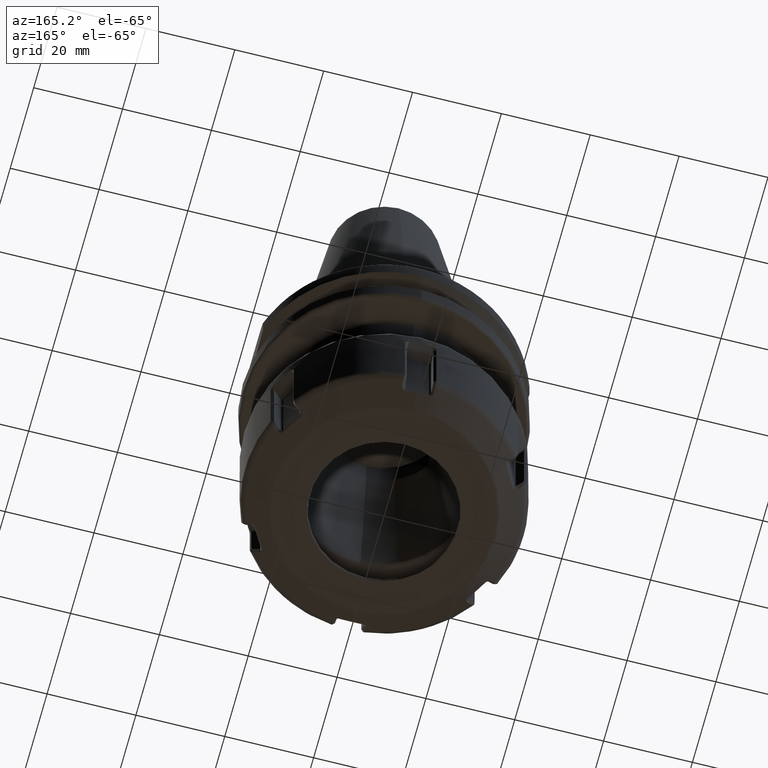
[diagram: clean part render]
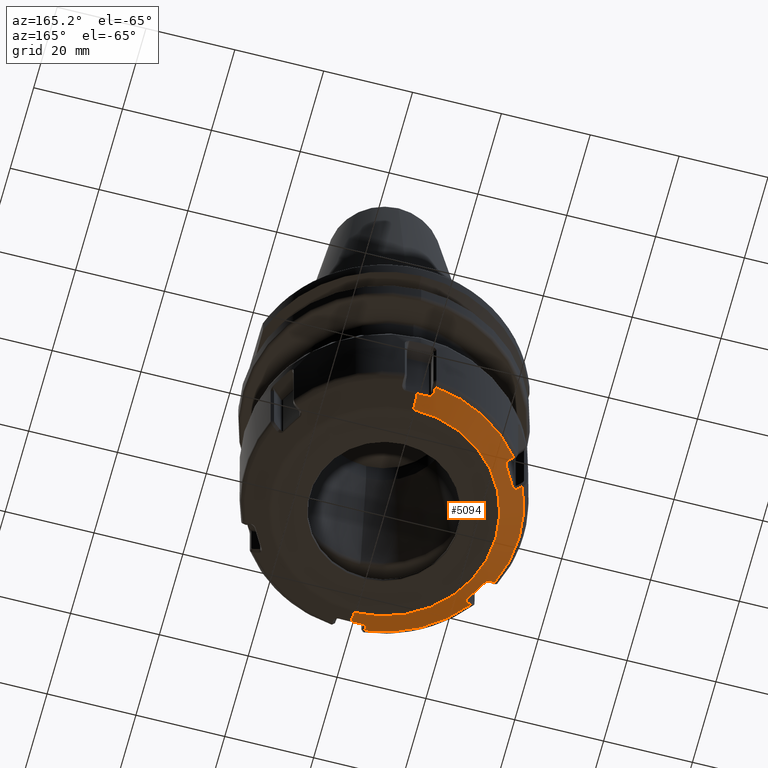
[diagram: same view with one face highlighted and labeled with its STEP entity id]
A machine part, auxiliary view. The second image highlights one B-rep face of the part: STEP entity #5094.
In plain terms, the highlighted conical surface has half-angle 60 deg.
Its self-contained STEP definition (entity closure, byte-faithful):
#952=CARTESIAN_POINT('',(0,0,-43.63205080757));
#953=DIRECTION('',(0,0,1));
#954=DIRECTION('',(0,1,0));
#955=AXIS2_PLACEMENT_3D('',#952,#953,#954);
#957=CARTESIAN_POINT('',(-0.00000000000001803634163934,28.29551270189,
-41.85299728715));
#958=CARTESIAN_POINT('',(-0.2795240122027,28.29551171985,
-41.85299785413));
#959=CARTESIAN_POINT('',(-0.8379811229829,28.29539314256,
-41.84829018710));
#960=CARTESIAN_POINT('',(-1.676447529886,28.29485463017,-41.82710500980));
#961=CARTESIAN_POINT('',(-2.234662083551,28.29425890073,-41.80363908820));
#962=CARTESIAN_POINT('',(-2.513999197096,28.29390472264,-41.78956919942));
#973=CARTESIAN_POINT('',(-0.00000000000001803634163934,28.29551270189,
-41.85299728715));
#979=DIRECTION('',(0,0.8660254037844,0.5));
#980=VECTOR('',#979,3.558107040843);
#981=CARTESIAN_POINT('',(0,25.21410161514,-43.63205080757));
#982=LINE('',#981,#980);
#988=DIRECTION('',(0,-0.8660254037844,0.5));
#989=VECTOR('',#988,3.558107040843);
#990=CARTESIAN_POINT('',(0,-25.21410161514,-43.63205080757));
#991=LINE('',#990,#989);
#1226=CARTESIAN_POINT('',(-2.513999121844,-28.29390472364,
-41.78956920261));
#1227=CARTESIAN_POINT('',(-2.234655208751,-28.29425897017,
-41.80363939896));
#1228=CARTESIAN_POINT('',(-1.676431599033,-28.29485461807,
-41.82710560029));
#1229=CARTESIAN_POINT('',(-0.8379650436613,-28.29539314208,
-41.84829042380));
#1230=CARTESIAN_POINT('',(-0.2795171227351,-28.29551175850,
-41.85299783182));
#1231=CARTESIAN_POINT('',(0.00000000000002052555870943,-28.29551270189,
-41.85299728715));
#1237=CARTESIAN_POINT('',(-3.606100078864,-29.23211477954,
-41.18431706275));
#1238=CARTESIAN_POINT('',(-3.600057736568,-29.17176657960,
-41.21932410138));
#1239=CARTESIAN_POINT('',(-3.577811108977,-29.05366741764,
-41.28856972752));
#1240=CARTESIAN_POINT('',(-3.512733985465,-28.88089348531,
-41.39215591309));
#1241=CARTESIAN_POINT('',(-3.418208198647,-28.72259452401,
-41.48942884373));
#1242=CARTESIAN_POINT('',(-3.297676238682,-28.58317434226,
-41.57749860462));
#1243=CARTESIAN_POINT('',(-3.146900678541,-28.46194026016,
-41.65684775598));
#1244=CARTESIAN_POINT('',(-2.965284669625,-28.36442254756,
-41.72410204355));
#1245=CARTESIAN_POINT('',(-2.736080650609,-28.30054502800,
-41.77407941906));
#1246=CARTESIAN_POINT('',(-2.589281539681,-28.29147365137,
-41.78712049315));
#1247=CARTESIAN_POINT('',(-2.513999121844,-28.29390472364,
-41.78956920261));
#1253=CARTESIAN_POINT('',(-3.604395912006,-30.23591953471,
-40.60910346562));
#1254=CARTESIAN_POINT('',(-3.604577485433,-30.12534466953,
-40.67248265102));
#1255=CARTESIAN_POINT('',(-3.604945602369,-29.90355519407,
-40.79959742944));
#1256=CARTESIAN_POINT('',(-3.605513356322,-29.56895468709,
-40.99133552412));
#1257=CARTESIAN_POINT('',(-3.605902648965,-29.34460772991,
-41.11987179870));
#1258=CARTESIAN_POINT('',(-3.606100078864,-29.23211477954,
-41.18431706275));
#1270=CARTESIAN_POINT('',(0,0,-40.60910346562));
#1271=DIRECTION('',(0,0,1));
#1272=DIRECTION('',(-0.1183709659105,0.9929694428478,0));
#1273=AXIS2_PLACEMENT_3D('',#1270,#1271,#1272);
#1275=CARTESIAN_POINT('',(0,0,-40.60910346562));
#1276=DIRECTION('',(0,0,1));
#1277=DIRECTION('',(-0.9191222456431,0.3939724578749,0));
#1278=AXIS2_PLACEMENT_3D('',#1275,#1276,#1277);
#1280=CARTESIAN_POINT('',(0,0,-40.60910346562));
#1281=DIRECTION('',(0,0,1));
#1282=DIRECTION('',(-0.8007512797326,-0.5989969849729,0));
#1283=AXIS2_PLACEMENT_3D('',#1280,#1281,#1282);
#1312=CARTESIAN_POINT('',(-3.606100078751,29.23211477642,
-41.18431706455));
#1313=CARTESIAN_POINT('',(-3.605902660595,29.34460100077,
-41.11987565372));
#1314=CARTESIAN_POINT('',(-3.605513383384,29.56893899102,
-40.99134451752));
#1315=CARTESIAN_POINT('',(-3.604945628601,29.90353952867,
-40.79960640726));
#1316=CARTESIAN_POINT('',(-3.604577496437,30.12533795563,
-40.67248649928));
#1317=CARTESIAN_POINT('',(-3.604395911974,30.23591953471,
-40.60910346562));
#1329=CARTESIAN_POINT('',(-2.513999197096,28.29390472264,
-41.78956919942));
#1330=CARTESIAN_POINT('',(-2.593515607078,28.29146018457,
-41.78691188522));
#1331=CARTESIAN_POINT('',(-2.746580487898,28.30180913735,
-41.77277514335));
#1332=CARTESIAN_POINT('',(-2.976909924493,28.36926811149,
-41.72061825514));
#1333=CARTESIAN_POINT('',(-3.156332845017,28.46834528950,
-41.65256980231));
#1334=CARTESIAN_POINT('',(-3.303671788241,28.58929255196,
-41.57358992449));
#1335=CARTESIAN_POINT('',(-3.421264427105,28.72705885585,
-41.48665958960));
#1336=CARTESIAN_POINT('',(-3.513955183728,28.88397482034,
-41.39030438978));
#1337=CARTESIAN_POINT('',(-3.578257938580,29.05512340661,
-41.28770386348));
#1338=CARTESIAN_POINT('',(-3.600329284611,29.17223017557,
-41.21903926295));
#1339=CARTESIAN_POINT('',(-3.606100078751,29.23211477642,
-41.18431706455));
#1736=CARTESIAN_POINT('',(-27.11880404209,11.49308311142,
-41.18431706455));
#1737=CARTESIAN_POINT('',(-27.21612126088,11.54949719273,
-41.11987565372));
#1738=CARTESIAN_POINT('',(-27.41020902087,11.66200331182,
-40.99134451752));
#1739=CARTESIAN_POINT('',(-27.69969770920,11.82979527070,
-40.79960640726));
#1740=CARTESIAN_POINT('',(-27.89159671539,11.94101329599,
-40.67248649928));
#1741=CARTESIAN_POINT('',(-27.98727237983,11.99646134229,
-40.60910346562));
#1753=CARTESIAN_POINT('',(-25.76023986130,11.96976519041,
-41.78956919934));
#1754=CARTESIAN_POINT('',(-25.79788103381,11.89967969121,
-41.78691188514));
#1755=CARTESIAN_POINT('',(-25.88337593027,11.77229609214,
-41.77277514330));
#1756=CARTESIAN_POINT('',(-26.05696183398,11.60655443607,
-41.72061825499));
#1757=CARTESIAN_POINT('',(-26.23247664734,11.50070821796,
-41.65256980214));
#1758=CARTESIAN_POINT('',(-26.41088952073,11.43358258150,
-41.57358992431));
#1759=CARTESIAN_POINT('',(-26.58899495903,11.40062752096,
-41.48665958944));
#1760=CARTESIAN_POINT('',(-26.77123354876,11.39881295332,
-41.39030438967));
#1761=CARTESIAN_POINT('',(-26.95160394960,11.42869942723,
-41.28770386343));
#1762=CARTESIAN_POINT('',(-27.06405705943,11.46813846534,
-41.21903926293));
#1763=CARTESIAN_POINT('',(-27.11880404209,11.49308311142,
-41.18431706455));
#1769=CARTESIAN_POINT('',(-23.24624062351,16.32413959850,
-41.78956919607));
#1770=CARTESIAN_POINT('',(-23.52650628065,15.84009888064,
-41.81774883079));
#1771=CARTESIAN_POINT('',(-24.08461431660,14.87537702138,
-41.85531966272));
#1772=CARTESIAN_POINT('',(-24.92484416123,13.42005720509,
-41.85531576435));
#1773=CARTESIAN_POINT('',(-25.48121585562,12.45444113328,
-41.81774563755));
#1774=CARTESIAN_POINT('',(-25.76023986130,11.96976519041,
-41.78956919934));
#1780=CARTESIAN_POINT('',(-23.51270395416,17.73903165920,
-41.18431707080));
#1781=CARTESIAN_POINT('',(-23.46347117493,17.70363897842,
-41.21931495238));
#1782=CARTESIAN_POINT('',(-23.37233997762,17.62534371692,
-41.28854315563));
#1783=CARTESIAN_POINT('',(-23.25527786808,17.48263616893,
-41.39210423345));
#1784=CARTESIAN_POINT('',(-23.16545320116,17.32167916162,
-41.48935687719));
#1785=CARTESIAN_POINT('',(-23.10497638838,17.14768228091,
-41.57739401542));
#1786=CARTESIAN_POINT('',(-23.07533670360,16.95657664615,
-41.65673043800));
#1787=CARTESIAN_POINT('',(-23.08161948644,16.75055454626,
-41.72401237666));
#1788=CARTESIAN_POINT('',(-23.14085119945,16.52001627090,
-41.77404970685));
#1789=CARTESIAN_POINT('',(-23.20644363657,16.38820529618,
-41.78711618466));
#1790=CARTESIAN_POINT('',(-23.24624062351,16.32413959850,
-41.78956919607));
#1796=CARTESIAN_POINT('',(-24.38287646784,18.23945819245,
-40.60910346562));
#1797=CARTESIAN_POINT('',(-24.28702503734,18.18432800618,
-40.67248265202));
#1798=CARTESIAN_POINT('',(-24.09476565560,18.07375206513,
-40.79959743261));
#1799=CARTESIAN_POINT('',(-23.80470923559,17.90694349915,
-40.99133552971));
#1800=CARTESIAN_POINT('',(-23.61022442004,17.79510715402,
-41.11987180796));
#1801=CARTESIAN_POINT('',(-23.51270395416,17.73903165920,
-41.18431707080));
#2080=CARTESIAN_POINT('',(-23.51270392297,-17.73903163965,
-41.18431709198));
#2081=CARTESIAN_POINT('',(-23.61021855386,-17.79510377921,
-41.11987568515));
#2082=CARTESIAN_POINT('',(-23.80469560791,-17.90693566319,
-40.99134453672));
#2083=CARTESIAN_POINT('',(-24.09475206438,-18.07374424835,
-40.79960641808));
#2084=CARTESIAN_POINT('',(-24.28701921375,-18.18432465665,
-40.67248650272));
#2085=CARTESIAN_POINT('',(-24.38287646786,-18.23945819242,
-40.60910346562));
#2097=CARTESIAN_POINT('',(-23.24624062225,-16.32413960060,
-41.78956919597));
#2098=CARTESIAN_POINT('',(-23.20466252741,-16.39123926677,
-41.78695108421));
#2099=CARTESIAN_POINT('',(-23.13732623136,-16.52813363998,
-41.77298900824));
#2100=CARTESIAN_POINT('',(-23.08005730973,-16.76212898217,
-41.72081519506));
#2101=CARTESIAN_POINT('',(-23.07612731281,-16.96715967227,
-41.65274060906));
#2102=CARTESIAN_POINT('',(-23.10710423874,-17.15530927121,
-41.57378058046));
#2103=CARTESIAN_POINT('',(-23.16756439218,-17.32606747524,
-41.48686224298));
#2104=CARTESIAN_POINT('',(-23.25710293608,-17.48491913766,
-41.39046960735));
#2105=CARTESIAN_POINT('',(-23.37324979083,-17.62634089434,
-41.28777710508));
#2106=CARTESIAN_POINT('',(-23.46369097934,-17.70406859635,
-41.21906425896));
#2107=CARTESIAN_POINT('',(-23.51270392297,-17.73903163965,
-41.18431709198));
#2113=CARTESIAN_POINT('',(-25.76023982510,-11.96976525522,
-41.78956920245));
#2114=CARTESIAN_POINT('',(-25.48118237570,-12.45450057397,
-41.81774870480));
#2115=CARTESIAN_POINT('',(-24.92476447022,-13.42019424316,
-41.85531946798));
#2116=CARTESIAN_POINT('',(-24.08453965892,-14.87550733553,
-41.85531599335));
#2117=CARTESIAN_POINT('',(-23.52647337831,-15.84015439555,
-41.81774595728));
#2118=CARTESIAN_POINT('',(-23.24624062225,-16.32413960060,
-41.78956919597));
#2124=CARTESIAN_POINT('',(-27.11880404485,-11.49308311288,
-41.18431706275));
#2125=CARTESIAN_POINT('',(-27.06351979953,-11.46814183486,
-41.21932410136));
#2126=CARTESIAN_POINT('',(-26.95011961140,-11.42835839855,
-41.28856972744));
#2127=CARTESIAN_POINT('',(-26.76795443530,-11.39832987454,
-41.39215591292));
#2128=CARTESIAN_POINT('',(-26.58360062016,-11.40104212652,
-41.48942884351));
#2129=CARTESIAN_POINT('',(-26.40259322114,-11.43571577482,
-41.57749860434));
#2130=CARTESIAN_POINT('',(-26.22221364626,-11.50567419892,
-41.65684775570));
#2131=CARTESIAN_POINT('',(-26.04695282534,-11.61419941997,
-41.72410204330));
#2132=CARTESIAN_POINT('',(-25.87703126102,-11.78075716290,
-41.77407941900));
#2133=CARTESIAN_POINT('',(-25.79577566271,-11.90335323475,
-41.78712049301));
#2134=CARTESIAN_POINT('',(-25.76023982510,-11.96976525522,
-41.78956920245));
#2140=CARTESIAN_POINT('',(-27.98727237984,-11.99646134226,
-40.60910346562));
#2141=CARTESIAN_POINT('',(-27.89160252429,-11.94101666247,
-40.67248265102));
#2142=CARTESIAN_POINT('',(-27.69971126272,-11.82980312612,
-40.79959742944));
#2143=CARTESIAN_POINT('',(-27.41022260053,-11.66201118329,
-40.99133552412));
#2144=CARTESIAN_POINT('',(-27.21612708268,-11.54950056738,
-41.11987179870));
#2145=CARTESIAN_POINT('',(-27.11880404485,-11.49308311288,
-41.18431706275));
#3625=CARTESIAN_POINT('',(0,25.21410161514,-43.63205080757));
#3627=VERTEX_POINT('',#3625);
#3629=CARTESIAN_POINT('',(0,-25.21410161514,-43.63205080757));
#3631=VERTEX_POINT('',#3629);
#3647=VERTEX_POINT('',#973);
#3648=VERTEX_POINT('',#962);
#3649=VERTEX_POINT('',#1339);
#3650=VERTEX_POINT('',#1317);
#3663=VERTEX_POINT('',#1796);
#3664=VERTEX_POINT('',#1801);
#3665=VERTEX_POINT('',#1790);
#3666=VERTEX_POINT('',#1774);
#3667=VERTEX_POINT('',#1763);
#3668=VERTEX_POINT('',#1741);
#3700=VERTEX_POINT('',#1253);
#3701=VERTEX_POINT('',#1258);
#3702=VERTEX_POINT('',#1247);
#3703=VERTEX_POINT('',#1231);
#3737=VERTEX_POINT('',#2140);
#3738=VERTEX_POINT('',#2145);
#3739=VERTEX_POINT('',#2134);
#3740=VERTEX_POINT('',#2118);
#3741=VERTEX_POINT('',#2107);
#3742=VERTEX_POINT('',#2085);
#5044=CARTESIAN_POINT('',(0,0,-42.12057713659));
#5045=DIRECTION('',(0,0,1));
#5046=DIRECTION('',(0,-1,0));
#5047=AXIS2_PLACEMENT_3D('',#5044,#5045,#5046);
#5048=CONICAL_SURFACE('',#5047,27.83205080757,60);
#5050=ORIENTED_EDGE('',*,*,#5049,.T.);
#5052=ORIENTED_EDGE('',*,*,#5051,.T.);
#5054=ORIENTED_EDGE('',*,*,#5053,.T.);
#5056=ORIENTED_EDGE('',*,*,#5055,.T.);
#5058=ORIENTED_EDGE('',*,*,#5057,.T.);
#5060=ORIENTED_EDGE('',*,*,#5059,.T.);
#5062=ORIENTED_EDGE('',*,*,#5061,.T.);
#5064=ORIENTED_EDGE('',*,*,#5063,.T.);
#5066=ORIENTED_EDGE('',*,*,#5065,.T.);
#5068=ORIENTED_EDGE('',*,*,#5067,.T.);
#5070=ORIENTED_EDGE('',*,*,#5069,.T.);
#5072=ORIENTED_EDGE('',*,*,#5071,.T.);
#5074=ORIENTED_EDGE('',*,*,#5073,.T.);
#5076=ORIENTED_EDGE('',*,*,#5075,.T.);
#5078=ORIENTED_EDGE('',*,*,#5077,.T.);
#5080=ORIENTED_EDGE('',*,*,#5079,.T.);
#5082=ORIENTED_EDGE('',*,*,#5081,.T.);
#5084=ORIENTED_EDGE('',*,*,#5083,.T.);
#5086=ORIENTED_EDGE('',*,*,#5085,.T.);
#5088=ORIENTED_EDGE('',*,*,#5087,.F.);
#5089=ORIENTED_EDGE('',*,*,#5037,.F.);
#5091=ORIENTED_EDGE('',*,*,#5090,.T.);
#5092=EDGE_LOOP('',(#5050,#5052,#5054,#5056,#5058,#5060,#5062,#5064,#5066,#5068,
#5070,#5072,#5074,#5076,#5078,#5080,#5082,#5084,#5086,#5088,#5089,#5091));
#5093=FACE_OUTER_BOUND('',#5092,.F.);
#5094=ADVANCED_FACE('',(#5093),#5048,.T.);
#956=CIRCLE('',#955,25.21410161514);
#963=B_SPLINE_CURVE_WITH_KNOTS('',3,(#957,#958,#959,#960,#961,#962),
.UNSPECIFIED.,.F.,.F.,(4,1,1,4),(0,0.3333333333333,0.6666666666667,1),
.UNSPECIFIED.);
#1232=B_SPLINE_CURVE_WITH_KNOTS('',3,(#1226,#1227,#1228,#1229,#1230,#1231),
.UNSPECIFIED.,.F.,.F.,(4,1,1,4),(0,0.3333333333333,0.6666666666667,1),
.UNSPECIFIED.);
#1248=B_SPLINE_CURVE_WITH_KNOTS('',3,(#1237,#1238,#1239,#1240,#1241,#1242,#1243,
#1244,#1245,#1246,#1247),.UNSPECIFIED.,.F.,.F.,(4,1,1,1,1,1,1,1,4),(0,
0.125,0.25,0.375,0.5,0.625,0.75,0.875,1),.UNSPECIFIED.);
#1259=B_SPLINE_CURVE_WITH_KNOTS('',3,(#1253,#1254,#1255,#1256,#1257,#1258),
.UNSPECIFIED.,.F.,.F.,(4,1,1,4),(0,0.3333333333333,0.6666666666667,1),
.UNSPECIFIED.);
#1274=CIRCLE('',#1273,30.45);
#1279=CIRCLE('',#1278,30.45);
#1284=CIRCLE('',#1283,30.45);
#1318=B_SPLINE_CURVE_WITH_KNOTS('',3,(#1312,#1313,#1314,#1315,#1316,#1317),
.UNSPECIFIED.,.F.,.F.,(4,1,1,4),(0,0.3333333333333,0.6666666666667,1),
.UNSPECIFIED.);
#1340=B_SPLINE_CURVE_WITH_KNOTS('',3,(#1329,#1330,#1331,#1332,#1333,#1334,#1335,
#1336,#1337,#1338,#1339),.UNSPECIFIED.,.F.,.F.,(4,1,1,1,1,1,1,1,4),(0,
0.125,0.25,0.375,0.5,0.625,0.75,0.875,1),.UNSPECIFIED.);
#1742=B_SPLINE_CURVE_WITH_KNOTS('',3,(#1736,#1737,#1738,#1739,#1740,#1741),
.UNSPECIFIED.,.F.,.F.,(4,1,1,4),(0,0.3333333333333,0.6666666666667,1),
.UNSPECIFIED.);
#1764=B_SPLINE_CURVE_WITH_KNOTS('',3,(#1753,#1754,#1755,#1756,#1757,#1758,#1759,
#1760,#1761,#1762,#1763),.UNSPECIFIED.,.F.,.F.,(4,1,1,1,1,1,1,1,4),(0,
0.125,0.25,0.375,0.5,0.625,0.75,0.875,1),.UNSPECIFIED.);
#1775=B_SPLINE_CURVE_WITH_KNOTS('',3,(#1769,#1770,#1771,#1772,#1773,#1774),
.UNSPECIFIED.,.F.,.F.,(4,1,1,4),(0,0.3333333333333,0.6666666666667,1),
.UNSPECIFIED.);
#1791=B_SPLINE_CURVE_WITH_KNOTS('',3,(#1780,#1781,#1782,#1783,#1784,#1785,#1786,
#1787,#1788,#1789,#1790),.UNSPECIFIED.,.F.,.F.,(4,1,1,1,1,1,1,1,4),(0,
0.125,0.25,0.375,0.5,0.625,0.75,0.875,1),.UNSPECIFIED.);
#1802=B_SPLINE_CURVE_WITH_KNOTS('',3,(#1796,#1797,#1798,#1799,#1800,#1801),
.UNSPECIFIED.,.F.,.F.,(4,1,1,4),(0,0.3333333333333,0.6666666666667,1),
.UNSPECIFIED.);
#2086=B_SPLINE_CURVE_WITH_KNOTS('',3,(#2080,#2081,#2082,#2083,#2084,#2085),
.UNSPECIFIED.,.F.,.F.,(4,1,1,4),(0,0.3333333333333,0.6666666666667,1),
.UNSPECIFIED.);
#2108=B_SPLINE_CURVE_WITH_KNOTS('',3,(#2097,#2098,#2099,#2100,#2101,#2102,#2103,
#2104,#2105,#2106,#2107),.UNSPECIFIED.,.F.,.F.,(4,1,1,1,1,1,1,1,4),(0,
0.125,0.25,0.375,0.5,0.625,0.75,0.875,1),.UNSPECIFIED.);
#2119=B_SPLINE_CURVE_WITH_KNOTS('',3,(#2113,#2114,#2115,#2116,#2117,#2118),
.UNSPECIFIED.,.F.,.F.,(4,1,1,4),(0,0.3333333333333,0.6666666666667,1),
.UNSPECIFIED.);
#2135=B_SPLINE_CURVE_WITH_KNOTS('',3,(#2124,#2125,#2126,#2127,#2128,#2129,#2130,
#2131,#2132,#2133,#2134),.UNSPECIFIED.,.F.,.F.,(4,1,1,1,1,1,1,1,4),(0,
0.125,0.25,0.375,0.5,0.625,0.75,0.875,1),.UNSPECIFIED.);
#2146=B_SPLINE_CURVE_WITH_KNOTS('',3,(#2140,#2141,#2142,#2143,#2144,#2145),
.UNSPECIFIED.,.F.,.F.,(4,1,1,4),(0,0.3333333333333,0.6666666666667,1),
.UNSPECIFIED.);
#5037=EDGE_CURVE('',#3627,#3631,#956,.T.);
#5049=EDGE_CURVE('',#3647,#3648,#963,.T.);
#5051=EDGE_CURVE('',#3648,#3649,#1340,.T.);
#5053=EDGE_CURVE('',#3649,#3650,#1318,.T.);
#5055=EDGE_CURVE('',#3650,#3663,#1274,.T.);
#5057=EDGE_CURVE('',#3663,#3664,#1802,.T.);
#5059=EDGE_CURVE('',#3664,#3665,#1791,.T.);
#5061=EDGE_CURVE('',#3665,#3666,#1775,.T.);
#5063=EDGE_CURVE('',#3666,#3667,#1764,.T.);
#5065=EDGE_CURVE('',#3667,#3668,#1742,.T.);
#5067=EDGE_CURVE('',#3668,#3737,#1279,.T.);
#5069=EDGE_CURVE('',#3737,#3738,#2146,.T.);
#5071=EDGE_CURVE('',#3738,#3739,#2135,.T.);
#5073=EDGE_CURVE('',#3739,#3740,#2119,.T.);
#5075=EDGE_CURVE('',#3740,#3741,#2108,.T.);
#5077=EDGE_CURVE('',#3741,#3742,#2086,.T.);
#5079=EDGE_CURVE('',#3742,#3700,#1284,.T.);
#5081=EDGE_CURVE('',#3700,#3701,#1259,.T.);
#5083=EDGE_CURVE('',#3701,#3702,#1248,.T.);
#5085=EDGE_CURVE('',#3702,#3703,#1232,.T.);
#5087=EDGE_CURVE('',#3631,#3703,#991,.T.);
#5090=EDGE_CURVE('',#3627,#3647,#982,.T.);